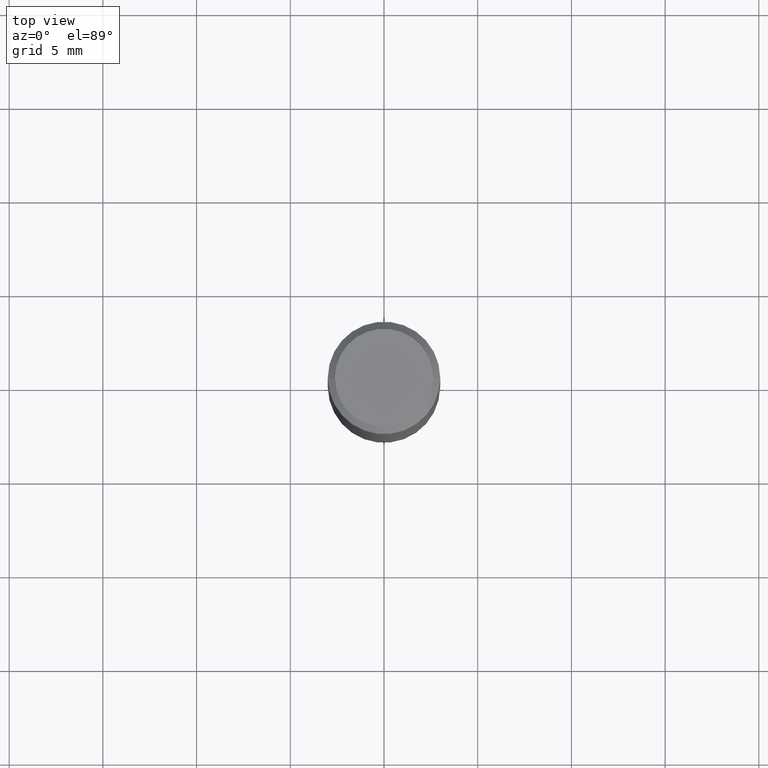
[diagram: clean part render]
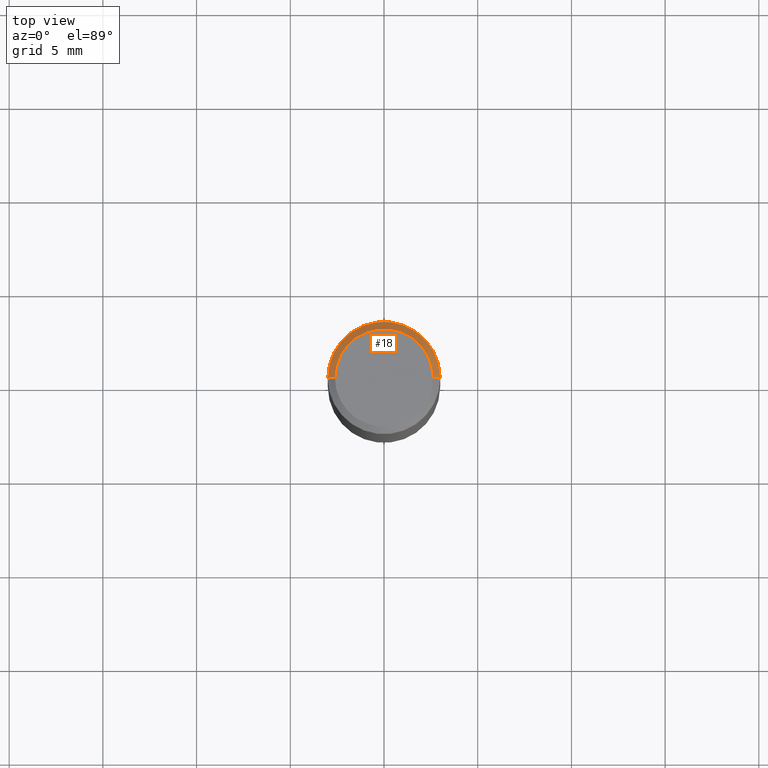
[diagram: same view with one face highlighted and labeled with its STEP entity id]
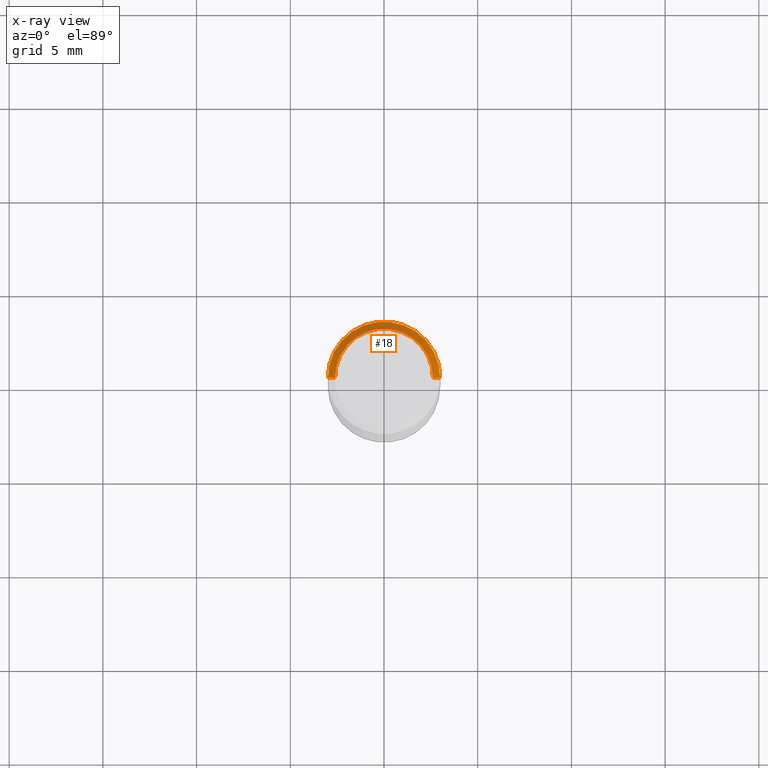
[diagram: x-ray of the same camera — body ghosted, the highlighted face saturated]
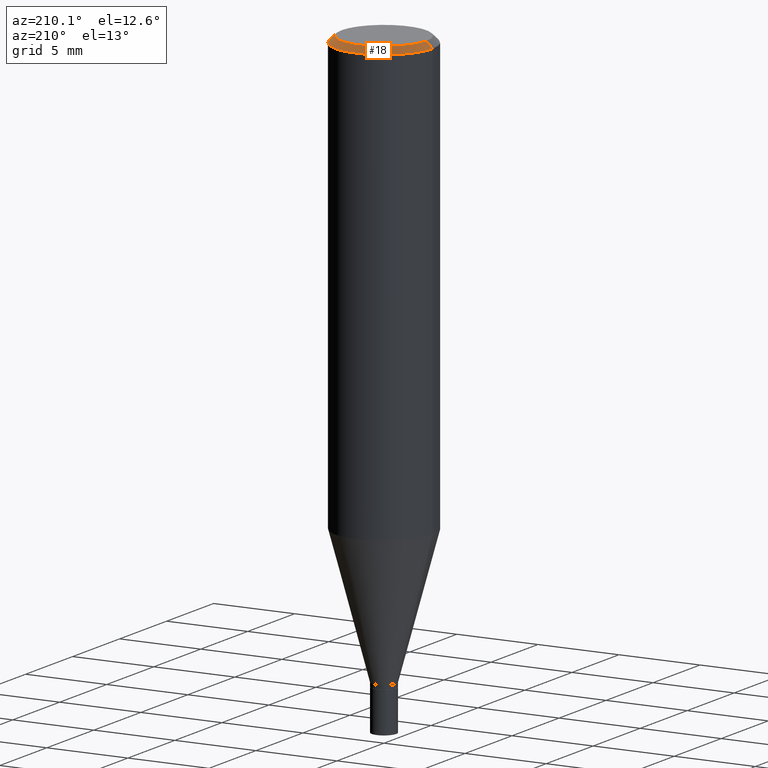
[diagram: same view with one face highlighted and labeled with its STEP entity id]
A machine part, top view. The second image highlights one B-rep face of the part: STEP entity #18.
The next image is the same camera in x-ray: the body ghosted, the highlighted face saturated — about 0% of this face is hidden behind the body in this view.
A second angle (auxiliary view) of the same face is appended — the face is thin or edge-on in the first view.
In plain terms, the highlighted conical surface has half-angle 45 deg.
Its self-contained STEP definition (entity closure, byte-faithful):
#10 = CARTESIAN_POINT ( 'NONE',  ( -0.1180999999999999966, -1.039487525583773150E-15, -0.01499999999999999944 ) ) ;
#14 = CARTESIAN_POINT ( 'NONE',  ( 0.1031000000000000111, -7.849571885948555664E-16, -2.607001550058841606E-16 ) ) ;
#18 = ADVANCED_FACE ( 'NONE', ( #462 ), #410, .T. ) ;
#47 = DIRECTION ( 'NONE',  ( -2.445468806185136597E-29, 3.491481338843145583E-15, 1.000000000000000000 ) ) ;
#50 = ORIENTED_EDGE ( 'NONE', *, *, #212, .F. ) ;
#59 = DIRECTION ( 'NONE',  ( 1.000000000000000000, -6.982962677686265922E-15, 4.883331232093008327E-29 ) ) ;
#67 = VECTOR ( 'NONE', #100, 39.37007874015748143 ) ;
#75 = CARTESIAN_POINT ( 'NONE',  ( 6.375340968345323889E-45, -9.102297262365781992E-31, -2.607001550058893868E-16 ) ) ;
#85 = VERTEX_POINT ( 'NONE', #14 ) ;
#100 = DIRECTION ( 'NONE',  ( -0.7071067811865535679, 2.468850131082320169E-15, -0.7071067811865414665 ) ) ;
#103 = CIRCLE ( 'NONE', #116, 0.1180999999999999966 ) ;
#116 = AXIS2_PLACEMENT_3D ( 'NONE', #294, #439, #334 ) ;
#132 = LINE ( 'NONE', #432, #67 ) ;
#135 = LINE ( 'NONE', #306, #225 ) ;
#150 = DIRECTION ( 'NONE',  ( -1.000000000000000000, 6.982962677686266711E-15, 0.000000000000000000 ) ) ;
#162 = ORIENTED_EDGE ( 'NONE', *, *, #404, .F. ) ;
#177 = EDGE_CURVE ( 'NONE', #237, #336, #103, .T. ) ;
#209 = VERTEX_POINT ( 'NONE', #409 ) ;
#212 = EDGE_CURVE ( 'NONE', #85, #209, #331, .T. ) ;
#225 = VECTOR ( 'NONE', #282, 39.37007874015748143 ) ;
#226 = ORIENTED_EDGE ( 'NONE', *, *, #177, .T. ) ;
#237 = VERTEX_POINT ( 'NONE', #385 ) ;
#254 = AXIS2_PLACEMENT_3D ( 'NONE', #75, #47, #59 ) ;
#262 = EDGE_CURVE ( 'NONE', #85, #237, #135, .T. ) ;
#282 = DIRECTION ( 'NONE',  ( 0.7071067811865535679, -7.319954787623276556E-15, -0.7071067811865414665 ) ) ;
#287 = CARTESIAN_POINT ( 'NONE',  ( 3.668203209277705088E-31, -5.237222008264718399E-17, -0.01499999999999999944 ) ) ;
#294 = CARTESIAN_POINT ( 'NONE',  ( 3.668203209277705088E-31, -5.237222008264718399E-17, -0.01499999999999999944 ) ) ;
#306 = CARTESIAN_POINT ( 'NONE',  ( 0.1180999999999999966, -8.625970336194650129E-16, -0.01499999999999999944 ) ) ;
#331 = CIRCLE ( 'NONE', #254, 0.1031000000000000111 ) ;
#334 = DIRECTION ( 'NONE',  ( 1.000000000000000000, -6.982962677686266711E-15, 0.000000000000000000 ) ) ;
#336 = VERTEX_POINT ( 'NONE', #10 ) ;
#375 = ORIENTED_EDGE ( 'NONE', *, *, #262, .T. ) ;
#385 = CARTESIAN_POINT ( 'NONE',  ( 0.1180999999999999966, -8.770601123173952432E-16, -0.01499999999999999944 ) ) ;
#392 = DIRECTION ( 'NONE',  ( 2.445468806185136597E-29, -3.491481338843145583E-15, -1.000000000000000000 ) ) ;
#397 = AXIS2_PLACEMENT_3D ( 'NONE', #287, #392, #150 ) ;
#404 = EDGE_CURVE ( 'NONE', #209, #336, #132, .T. ) ;
#409 = CARTESIAN_POINT ( 'NONE',  ( -0.1031000000000000111, 7.461295621107770521E-16, -2.607001550058945144E-16 ) ) ;
#410 = CONICAL_SURFACE ( 'NONE', #397, 0.1180999999999999966, 0.7853981633974568277 ) ;
#432 = CARTESIAN_POINT ( 'NONE',  ( -0.1180999999999999966, 7.723156721521009862E-16, -0.01499999999999999944 ) ) ;
#439 = DIRECTION ( 'NONE',  ( -2.445468806185136597E-29, 3.491481338843145583E-15, 1.000000000000000000 ) ) ;
#458 = EDGE_LOOP ( 'NONE', ( #50, #375, #226, #162 ) ) ;
#462 = FACE_OUTER_BOUND ( 'NONE', #458, .T. ) ;